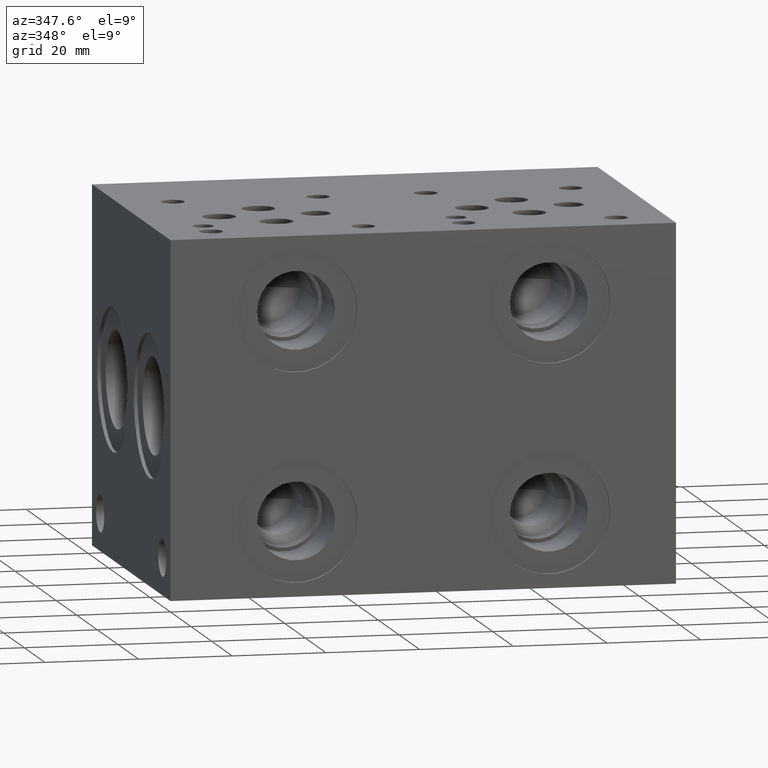
[diagram: clean part render]
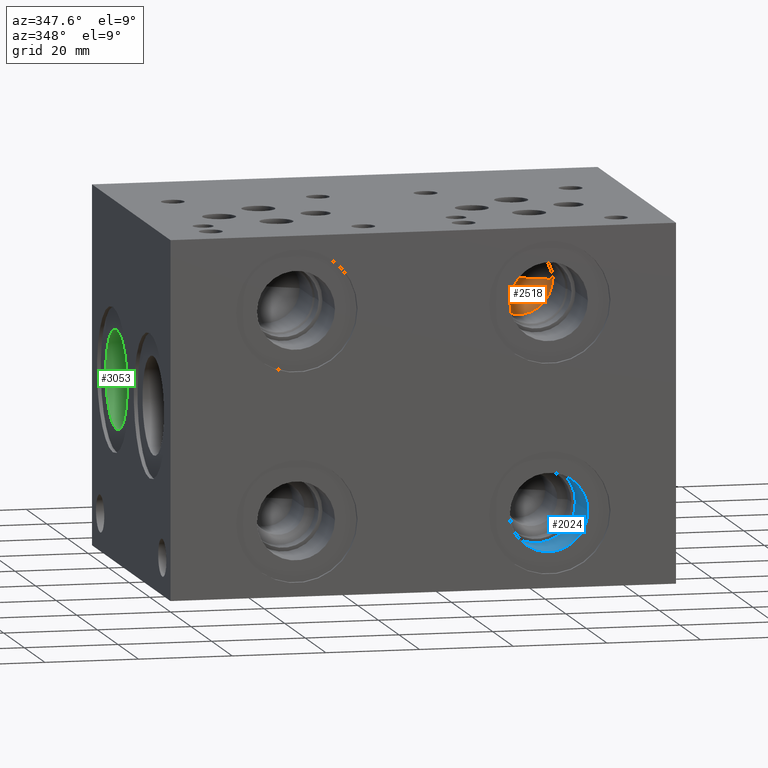
[diagram: same view with three faces highlighted in distinct colors, each labeled with its STEP entity id]
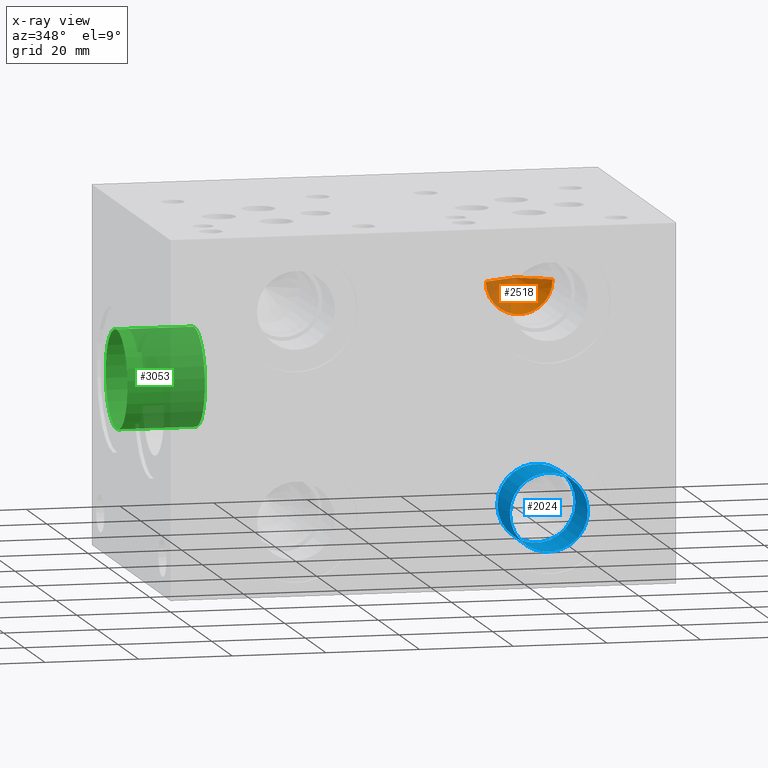
[diagram: x-ray of the same camera — body ghosted, the three highlighted faces saturated]
A machine part, auxiliary view with three faces highlighted in distinct colors.
The next image is the same camera in x-ray (body ghosted, the three faces saturated) — at least one of them is partly hidden behind the body in this view.
Their STEP definitions:

[orange] entity #2518 — the highlighted conical surface has half-angle 60 deg.
#2475=CARTESIAN_POINT('',(3.468999999999999,1.167879930660700,2.375000000000000));
#2476=VERTEX_POINT('',#2475);
#2477=CARTESIAN_POINT('',(2.907000000000000,1.167879930660700,2.375000000000000));
#2478=VERTEX_POINT('',#2477);
#2479=CARTESIAN_POINT('',(3.188000000000000,1.167879930660700,2.375000000000000));
#2480=DIRECTION('',(0.0,1.0,0.0));
#2481=DIRECTION('',(-1.0,0.0,0.0));
#2482=AXIS2_PLACEMENT_3D('',#2479,#2480,#2481);
#2483=CIRCLE('',#2482,0.281000000000000);
#2484=EDGE_CURVE('',#2476,#2478,#2483,.T.);
#2496=CARTESIAN_POINT('',(3.188000000000000,0.752765087113359,2.375000000000000));
#2497=DIRECTION('',(0.0,-1.0,0.0));
#2498=DIRECTION('',(-1.0,0.0,0.0));
#2499=AXIS2_PLACEMENT_3D('',#2496,#2497,#2498);
#2500=CONICAL_SURFACE('',#2499,1.000000000000000,59.999999999999993);
#2501=CARTESIAN_POINT('',(3.188000000000000,1.330115356302990,2.375000000000000));
#2502=VERTEX_POINT('',#2501);
#2503=CARTESIAN_POINT('',(2.907000000000000,1.167879930660700,2.375000000000000));
#2504=DIRECTION('',(0.866025403784445,0.499999999999989,0.0));
#2505=VECTOR('',#2504,0.324470851284572);
#2506=LINE('',#2503,#2505);
#2507=EDGE_CURVE('',#2478,#2502,#2506,.T.);
#2508=ORIENTED_EDGE('',*,*,#2507,.F.);
#2509=ORIENTED_EDGE('',*,*,#2484,.F.);
#2510=CARTESIAN_POINT('',(3.188000000000000,1.330115356302990,2.375000000000000));
#2511=DIRECTION('',(0.866025403784445,-0.499999999999989,0.0));
#2512=VECTOR('',#2511,0.324470851284571);
#2513=LINE('',#2510,#2512);
#2514=EDGE_CURVE('',#2502,#2476,#2513,.T.);
#2515=ORIENTED_EDGE('',*,*,#2514,.F.);
#2516=EDGE_LOOP('',(#2508,#2509,#2515));
#2517=FACE_OUTER_BOUND('',#2516,.T.);
#2518=ADVANCED_FACE('',(#2517),#2500,.F.);

[blue] entity #2024 — the highlighted cylindrical surface (bore or boss wall) has radius 8.3312 mm, axis along (0, 1, 0).
#1993=CARTESIAN_POINT('',(3.516000000000000,0.031000000000000,0.625000000000000));
#1994=VERTEX_POINT('',#1993);
#1995=CARTESIAN_POINT('',(3.188000000000000,0.031000000000000,0.625000000000000));
#1996=DIRECTION('',(0.0,1.0,0.0));
#1997=DIRECTION('',(-1.0,0.0,0.0));
#1998=AXIS2_PLACEMENT_3D('',#1995,#1996,#1997);
#1999=CIRCLE('',#1998,0.328000000000000);
#2000=EDGE_CURVE('',#1994,#1994,#1999,.T.);
#2005=CARTESIAN_POINT('',(3.188000000000000,0.031000000000000,0.625000000000000));
#2006=DIRECTION('',(0.0,1.0,0.0));
#2007=DIRECTION('',(-1.0,0.0,0.0));
#2008=AXIS2_PLACEMENT_3D('',#2005,#2006,#2007);
#2009=CYLINDRICAL_SURFACE('',#2008,0.328000000000000);
#2010=ORIENTED_EDGE('',*,*,#2000,.F.);
#2011=EDGE_LOOP('',(#2010));
#2012=FACE_OUTER_BOUND('',#2011,.T.);
#2013=CARTESIAN_POINT('',(3.516000000000000,0.510000000000000,0.625000000000000));
#2014=VERTEX_POINT('',#2013);
#2015=CARTESIAN_POINT('',(3.188000000000000,0.510000000000000,0.625000000000000));
#2016=DIRECTION('',(0.0,1.0,0.0));
#2017=DIRECTION('',(-1.0,0.0,0.0));
#2018=AXIS2_PLACEMENT_3D('',#2015,#2016,#2017);
#2019=CIRCLE('',#2018,0.328000000000000);
#2020=EDGE_CURVE('',#2014,#2014,#2019,.T.);
#2021=ORIENTED_EDGE('',*,*,#2020,.T.);
#2022=EDGE_LOOP('',(#2021));
#2023=FACE_BOUND('',#2022,.T.);
#2024=ADVANCED_FACE('',(#2012,#2023),#2009,.F.);

[green] entity #3053 — the highlighted cylindrical surface (bore or boss wall) has radius 10.4775 mm, axis along (1, 0, 0).
#3022=CARTESIAN_POINT('',(0.031000000000000,2.202999999999999,1.912500000000000));
#3023=VERTEX_POINT('',#3022);
#3024=CARTESIAN_POINT('',(0.031000000000000,2.202999999999999,1.500000000000000));
#3025=DIRECTION('',(1.0,0.0,0.0));
#3026=DIRECTION('',(0.0,-1.0,0.0));
#3027=AXIS2_PLACEMENT_3D('',#3024,#3025,#3026);
#3028=CIRCLE('',#3027,0.412500000000000);
#3029=EDGE_CURVE('',#3023,#3023,#3028,.T.);
#3034=CARTESIAN_POINT('',(0.031000000000000,2.202999999999999,1.500000000000000));
#3035=DIRECTION('',(1.0,0.0,0.0));
#3036=DIRECTION('',(0.0,-1.0,0.0));
#3037=AXIS2_PLACEMENT_3D('',#3034,#3035,#3036);
#3038=CYLINDRICAL_SURFACE('',#3037,0.412500000000000);
#3039=ORIENTED_EDGE('',*,*,#3029,.F.);
#3040=EDGE_LOOP('',(#3039));
#3041=FACE_OUTER_BOUND('',#3040,.T.);
#3042=CARTESIAN_POINT('',(0.684000000000000,2.202999999999999,1.912500000000000));
#3043=VERTEX_POINT('',#3042);
#3044=CARTESIAN_POINT('',(0.684000000000000,2.202999999999999,1.500000000000000));
#3045=DIRECTION('',(1.0,0.0,0.0));
#3046=DIRECTION('',(0.0,-1.0,0.0));
#3047=AXIS2_PLACEMENT_3D('',#3044,#3045,#3046);
#3048=CIRCLE('',#3047,0.412500000000000);
#3049=EDGE_CURVE('',#3043,#3043,#3048,.T.);
#3050=ORIENTED_EDGE('',*,*,#3049,.T.);
#3051=EDGE_LOOP('',(#3050));
#3052=FACE_BOUND('',#3051,.T.);
#3053=ADVANCED_FACE('',(#3041,#3052),#3038,.F.);